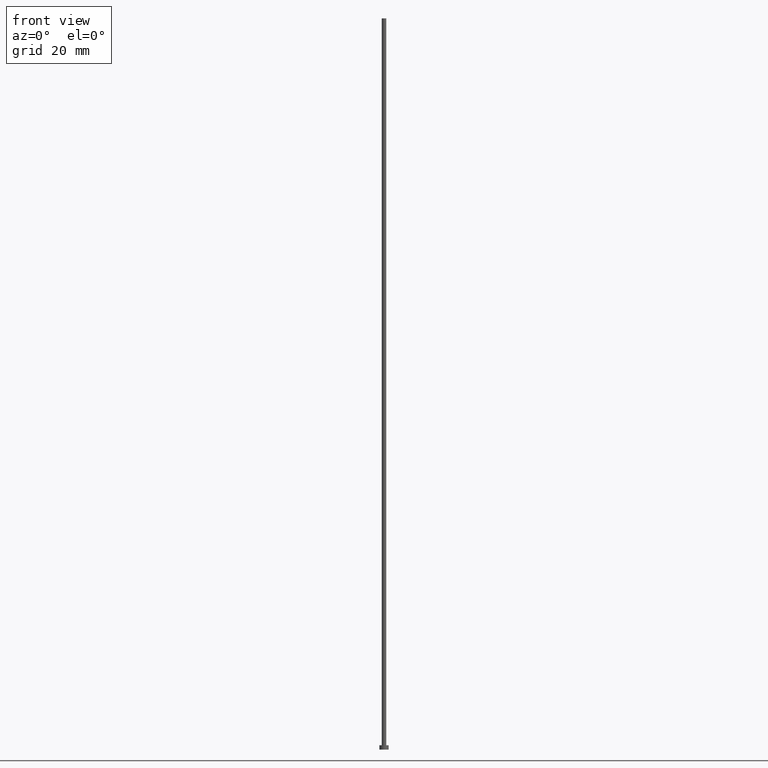
[diagram: clean part render]
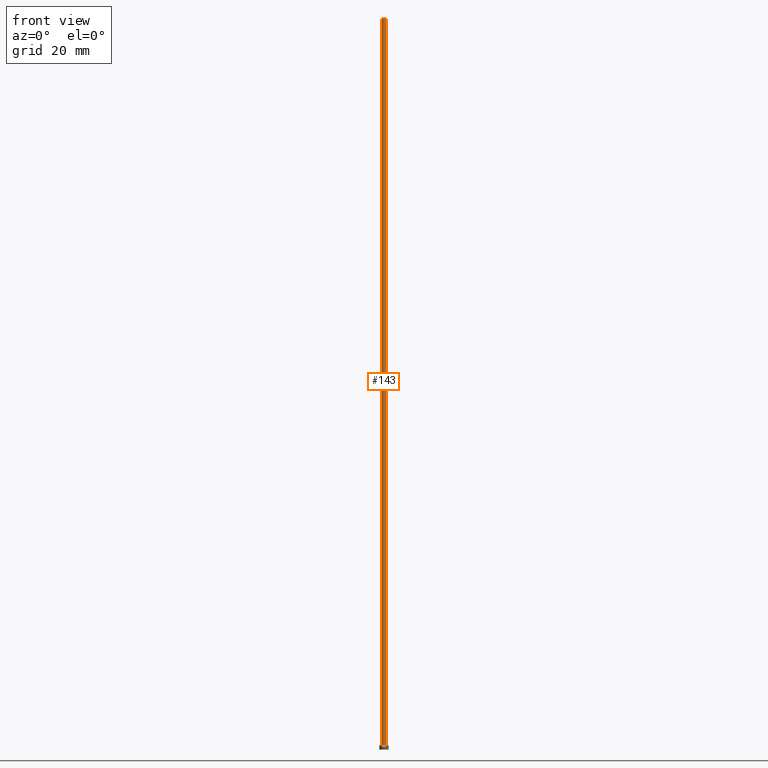
[diagram: same view with one face highlighted and labeled with its STEP entity id]
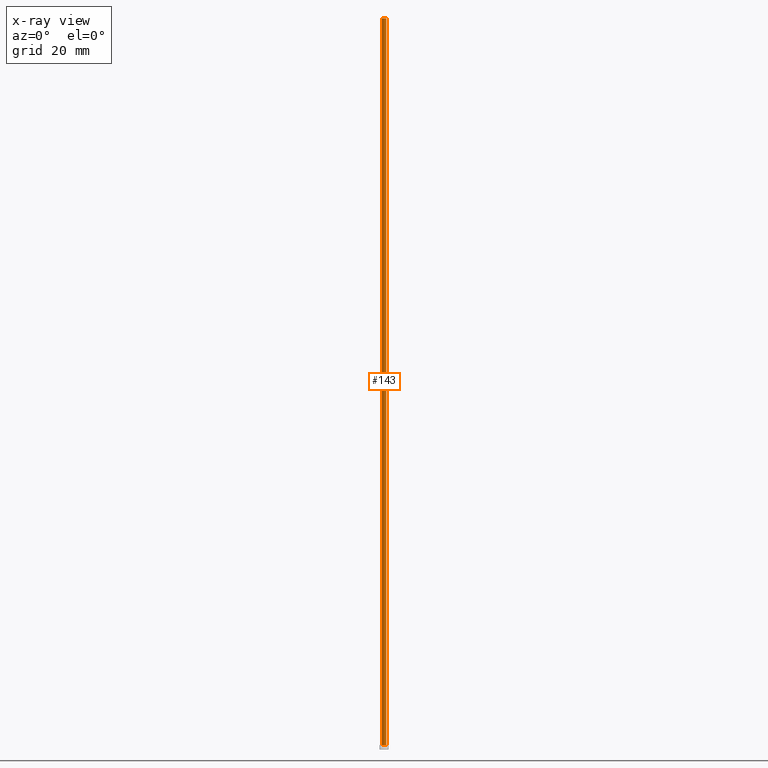
[diagram: x-ray of the same camera — body ghosted, the highlighted face saturated]
A machine part, front view. The second image highlights one B-rep face of the part: STEP entity #143.
The next image is the same camera in x-ray: the body ghosted, the highlighted face saturated — about 0% of this face is hidden behind the body in this view.
In plain terms, the highlighted cylindrical surface (edge-blend (fillet) strip) has radius 0.6 mm, axis along (-0, -0, -1).
Its self-contained STEP definition (entity closure, byte-faithful):
#4 = EDGE_CURVE ( 'NONE', #101, #65, #147, .T. ) ;
#8 = AXIS2_PLACEMENT_3D ( 'NONE', #137, #203, #240 ) ;
#14 = DIRECTION ( 'NONE',  ( -0.000000000000000000, -0.000000000000000000, -1.000000000000000000 ) ) ;
#16 = CARTESIAN_POINT ( 'NONE',  ( 0.5999999999999999778, 7.347880794884117764E-17, 1.199999999999999956 ) ) ;
#19 = VECTOR ( 'NONE', #40, 1000.000000000000000 ) ;
#23 = EDGE_CURVE ( 'NONE', #83, #128, #242, .T. ) ;
#30 = CARTESIAN_POINT ( 'NONE',  ( -0.5999999999999999778, 0.000000000000000000, 1.199999999999999956 ) ) ;
#40 = DIRECTION ( 'NONE',  ( -0.000000000000000000, -0.000000000000000000, -1.000000000000000000 ) ) ;
#65 = VERTEX_POINT ( 'NONE', #30 ) ;
#70 = ORIENTED_EDGE ( 'NONE', *, *, #189, .F. ) ;
#79 = CIRCLE ( 'NONE', #197, 0.5999999999999999778 ) ;
#83 = VERTEX_POINT ( 'NONE', #109 ) ;
#84 = CARTESIAN_POINT ( 'NONE',  ( 0.5999999999999999778, 7.347880794884117764E-17, 200.0000000000000000 ) ) ;
#88 = FACE_OUTER_BOUND ( 'NONE', #149, .T. ) ;
#91 = DIRECTION ( 'NONE',  ( -1.000000000000000000, 0.000000000000000000, 0.000000000000000000 ) ) ;
#93 = DIRECTION ( 'NONE',  ( 1.000000000000000000, 0.000000000000000000, 0.000000000000000000 ) ) ;
#101 = VERTEX_POINT ( 'NONE', #191 ) ;
#105 = VECTOR ( 'NONE', #14, 1000.000000000000000 ) ;
#106 = CARTESIAN_POINT ( 'NONE',  ( 0.000000000000000000, 0.000000000000000000, 200.0000000000000000 ) ) ;
#109 = CARTESIAN_POINT ( 'NONE',  ( 0.5999999999999999778, 7.347880794884117764E-17, 200.0000000000000000 ) ) ;
#116 = ORIENTED_EDGE ( 'NONE', *, *, #4, .T. ) ;
#123 = CARTESIAN_POINT ( 'NONE',  ( 0.000000000000000000, 0.000000000000000000, 1.199999999999999956 ) ) ;
#128 = VERTEX_POINT ( 'NONE', #16 ) ;
#137 = CARTESIAN_POINT ( 'NONE',  ( 0.000000000000000000, 0.000000000000000000, 200.0000000000000000 ) ) ;
#142 = AXIS2_PLACEMENT_3D ( 'NONE', #106, #170, #91 ) ;
#143 = ADVANCED_FACE ( 'NONE', ( #88 ), #154, .T. ) ;
#147 = LINE ( 'NONE', #214, #105 ) ;
#149 = EDGE_LOOP ( 'NONE', ( #181, #70, #116, #161 ) ) ;
#154 = CYLINDRICAL_SURFACE ( 'NONE', #142, 0.5999999999999999778 ) ;
#156 = EDGE_CURVE ( 'NONE', #65, #128, #79, .T. ) ;
#161 = ORIENTED_EDGE ( 'NONE', *, *, #156, .T. ) ;
#170 = DIRECTION ( 'NONE',  ( -0.000000000000000000, -0.000000000000000000, -1.000000000000000000 ) ) ;
#181 = ORIENTED_EDGE ( 'NONE', *, *, #23, .F. ) ;
#189 = EDGE_CURVE ( 'NONE', #101, #83, #209, .T. ) ;
#191 = CARTESIAN_POINT ( 'NONE',  ( -0.5999999999999999778, 0.000000000000000000, 200.0000000000000000 ) ) ;
#197 = AXIS2_PLACEMENT_3D ( 'NONE', #123, #230, #93 ) ;
#203 = DIRECTION ( 'NONE',  ( 0.000000000000000000, 0.000000000000000000, 1.000000000000000000 ) ) ;
#209 = CIRCLE ( 'NONE', #8, 0.5999999999999999778 ) ;
#214 = CARTESIAN_POINT ( 'NONE',  ( -0.5999999999999999778, 0.000000000000000000, 200.0000000000000000 ) ) ;
#230 = DIRECTION ( 'NONE',  ( 0.000000000000000000, 0.000000000000000000, 1.000000000000000000 ) ) ;
#240 = DIRECTION ( 'NONE',  ( 1.000000000000000000, 0.000000000000000000, 0.000000000000000000 ) ) ;
#242 = LINE ( 'NONE', #84, #19 ) ;